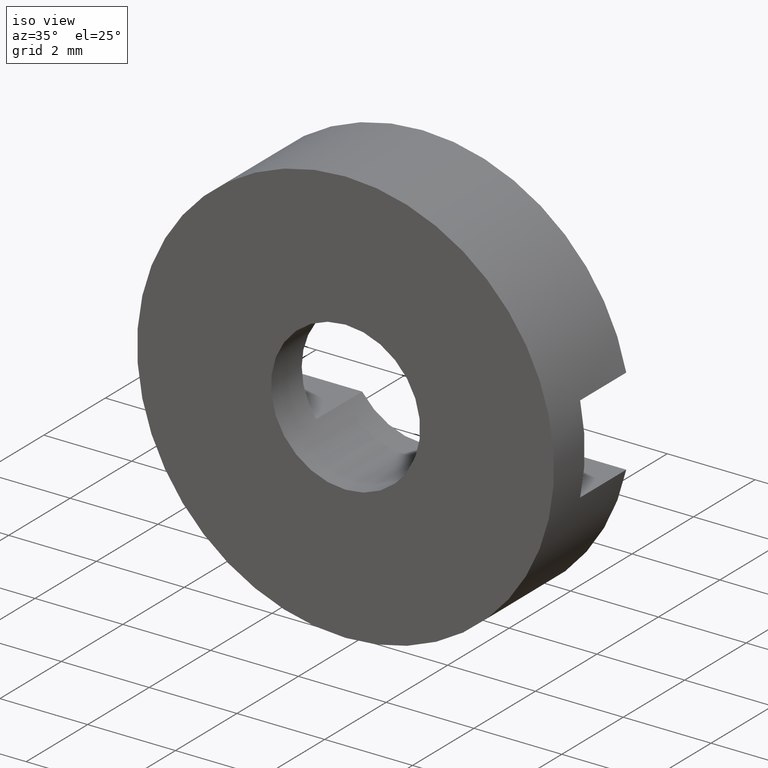
[diagram: clean part render]
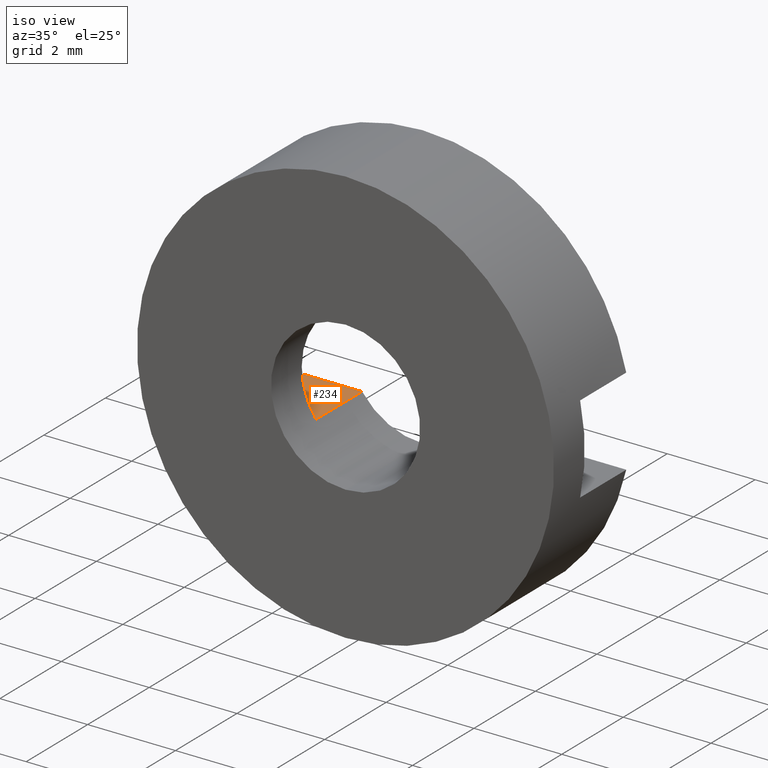
[diagram: same view with one face highlighted and labeled with its STEP entity id]
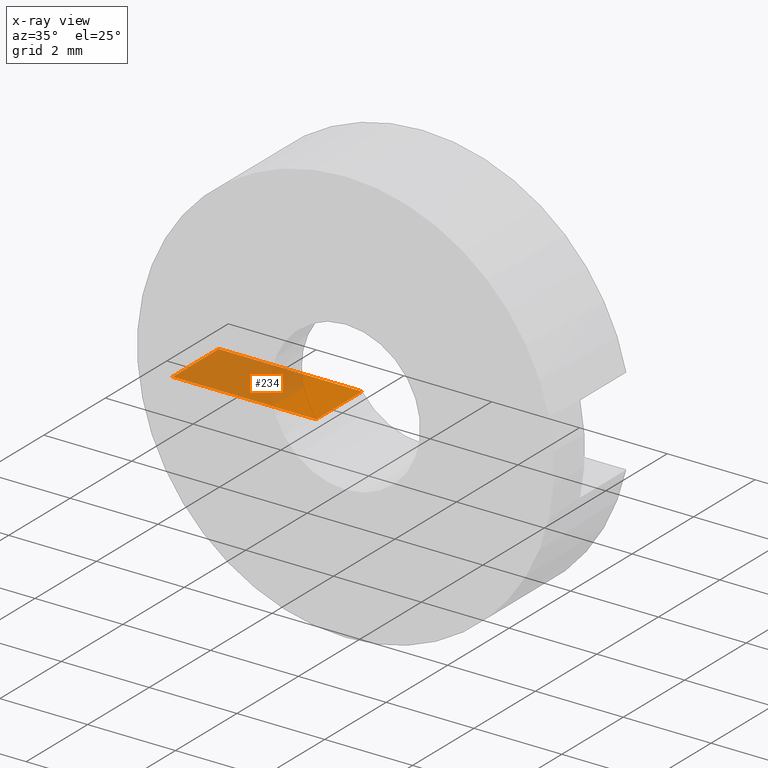
[diagram: x-ray of the same camera — body ghosted, the highlighted face saturated]
A machine part, iso view. The second image highlights one B-rep face of the part: STEP entity #234.
The next image is the same camera in x-ray: the body ghosted, the highlighted face saturated — about 67% of this face is hidden behind the body in this view.
In plain terms, the highlighted planar face has unit normal (0, 0, -1).
Its self-contained STEP definition (entity closure, byte-faithful):
#13 = VECTOR ( 'NONE', #179, 1000.000000000000000 ) ;
#19 = EDGE_CURVE ( 'NONE', #195, #440, #503, .T. ) ;
#20 = CARTESIAN_POINT ( 'NONE',  ( -26.85254027261461800, -1.964249787179431300, -1.000000000000000000 ) ) ;
#33 = CARTESIAN_POINT ( 'NONE',  ( -26.85254027261461800, -3.464249787179431600, -1.000000000000000000 ) ) ;
#41 = EDGE_LOOP ( 'NONE', ( #283, #276, #468, #383 ) ) ;
#43 = LINE ( 'NONE', #20, #551 ) ;
#65 = LINE ( 'NONE', #92, #13 ) ;
#70 = VERTEX_POINT ( 'NONE', #473 ) ;
#92 = CARTESIAN_POINT ( 'NONE',  ( -1.374772708486760900, 56.26084262701361600, -1.000000000000000000 ) ) ;
#106 = LINE ( 'NONE', #584, #391 ) ;
#131 = PLANE ( 'NONE',  #374 ) ;
#134 = DIRECTION ( 'NONE',  ( -1.000000000000000000, -0.0000000000000000000, -0.0000000000000000000 ) ) ;
#147 = FACE_OUTER_BOUND ( 'NONE', #41, .T. ) ;
#179 = DIRECTION ( 'NONE',  ( 0.0000000000000000000, -1.000000000000000000, 0.0000000000000000000 ) ) ;
#195 = VERTEX_POINT ( 'NONE', #308 ) ;
#234 = ADVANCED_FACE ( 'NONE', ( #147 ), #131, .F. ) ;
#257 = VECTOR ( 'NONE', #520, 1000.000000000000000 ) ;
#260 = DIRECTION ( 'NONE',  ( 0.0000000000000000000, 0.0000000000000000000, -1.000000000000000000 ) ) ;
#276 = ORIENTED_EDGE ( 'NONE', *, *, #560, .F. ) ;
#283 = ORIENTED_EDGE ( 'NONE', *, *, #371, .F. ) ;
#303 = DIRECTION ( 'NONE',  ( -1.000000000000000000, -0.0000000000000000000, -0.0000000000000000000 ) ) ;
#308 = CARTESIAN_POINT ( 'NONE',  ( -4.643543905251684500, -3.464249787179428400, -0.9999999999999995600 ) ) ;
#347 = DIRECTION ( 'NONE',  ( -1.000000000000000000, 0.0000000000000000000, -0.0000000000000000000 ) ) ;
#371 = EDGE_CURVE ( 'NONE', #509, #195, #106, .T. ) ;
#374 = AXIS2_PLACEMENT_3D ( 'NONE', #33, #260, #347 ) ;
#383 = ORIENTED_EDGE ( 'NONE', *, *, #19, .F. ) ;
#391 = VECTOR ( 'NONE', #134, 1000.000000000000000 ) ;
#440 = VERTEX_POINT ( 'NONE', #547 ) ;
#468 = ORIENTED_EDGE ( 'NONE', *, *, #510, .T. ) ;
#473 = CARTESIAN_POINT ( 'NONE',  ( -1.374772708486760900, -1.964249787179434000, -0.9999999999999995600 ) ) ;
#486 = CARTESIAN_POINT ( 'NONE',  ( -1.374772708486760900, -3.464249787179428400, -0.9999999999999995600 ) ) ;
#503 = LINE ( 'NONE', #517, #257 ) ;
#509 = VERTEX_POINT ( 'NONE', #486 ) ;
#510 = EDGE_CURVE ( 'NONE', #70, #440, #43, .T. ) ;
#517 = CARTESIAN_POINT ( 'NONE',  ( -4.643543905251685400, 56.26084262701361600, -1.000000000000000000 ) ) ;
#520 = DIRECTION ( 'NONE',  ( -0.0000000000000000000, 1.000000000000000000, -0.0000000000000000000 ) ) ;
#547 = CARTESIAN_POINT ( 'NONE',  ( -4.643543905251693400, -1.964249787179431300, -1.000000000000000000 ) ) ;
#551 = VECTOR ( 'NONE', #303, 1000.000000000000000 ) ;
#560 = EDGE_CURVE ( 'NONE', #70, #509, #65, .T. ) ;
#584 = CARTESIAN_POINT ( 'NONE',  ( -26.85254027261461800, -3.464249787179431600, -1.000000000000000000 ) ) ;